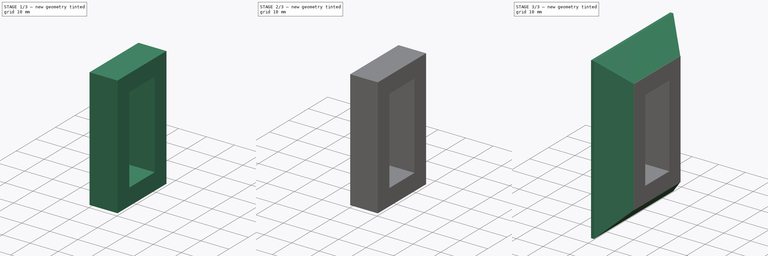
[diagram: build sequence overview — one tinted view per stage of 3, left to right]
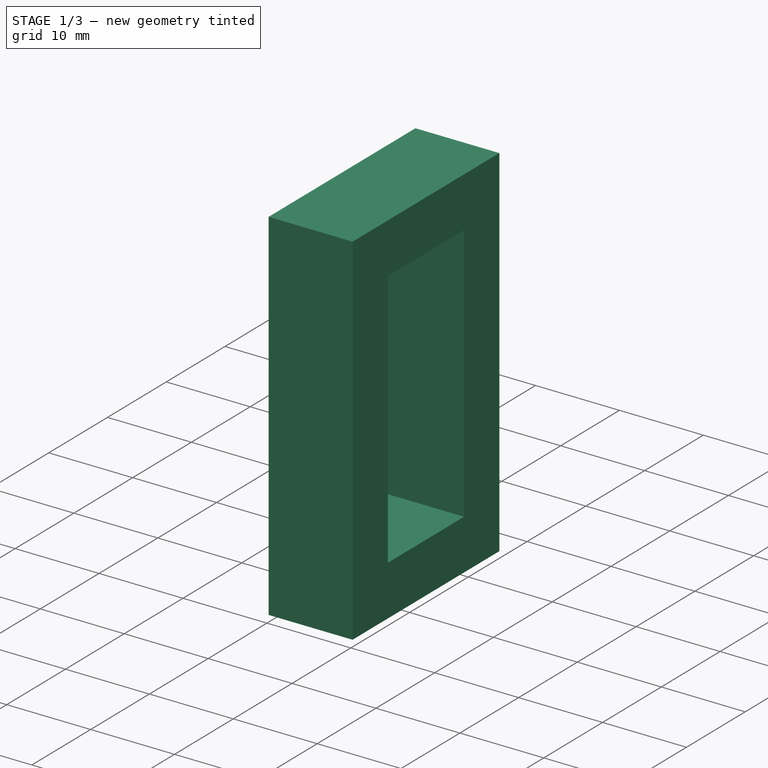
[diagram: stage 1 of 3 — iso view after this stage's code; geometry added in this stage tinted green]
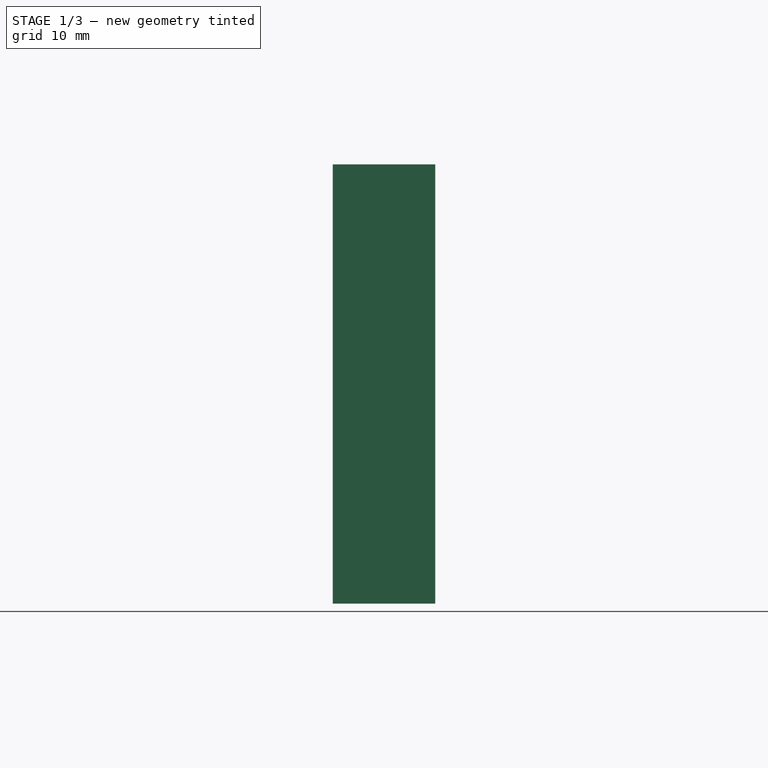
[diagram: stage 1 of 3 — front view after this stage's code; geometry added in this stage tinted green]
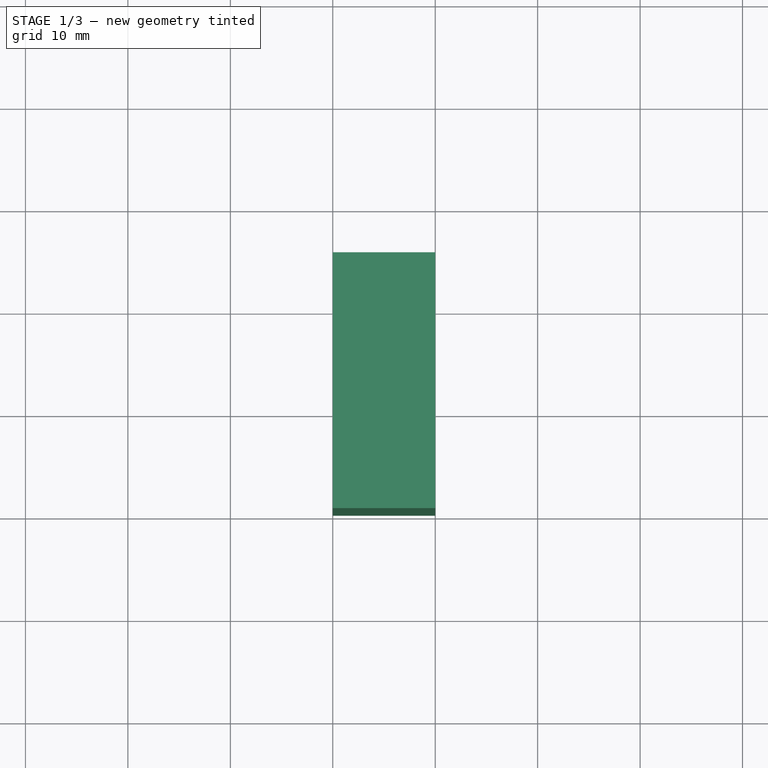
[diagram: stage 1 of 3 — top view after this stage's code; geometry added in this stage tinted green]
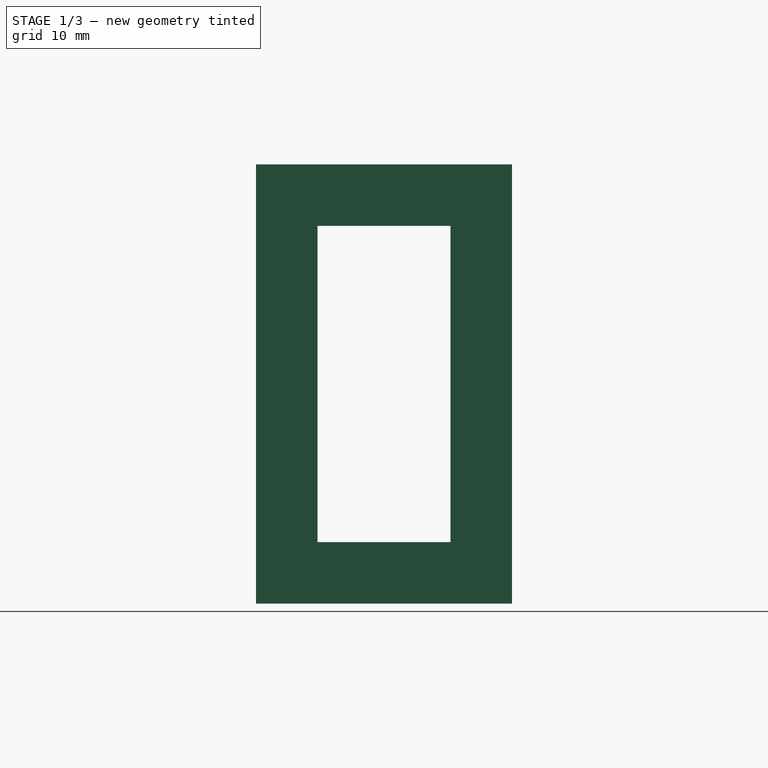
[diagram: stage 1 of 3 — right view after this stage's code; geometry added in this stage tinted green]
FCSTD DOCUMENT  (FreeCAD 0.20R29410 (Git))
Label: tools-case-top-panel-router-guide
License: All rights reserved
LicenseURL: http://en.wikipedia.org/wiki/All_rights_reserved
objects: Sketcher::SketchObject×3, PartDesign::Pad×3, PartDesign::Chamfer×2, Part::FeaturePython×1, PartDesign::ShapeBinder×1, PartDesign::Body×1
note: 16 computed .brp shape members not serialized (recipe doc carries the construction recipe); baked Part::Feature solids carry a one-line shape summary decoded from their .brp

FEATURE [Part::FeaturePython] b_case_top_panel_001_  label="REF_panel"  # a2plus imported part (geometry in sourceFile) (typed FeaturePython)
  a2p_Version = V0.1
  fixedPosition = true
  objectType = a2pPart
  sourceFile = .\case-top-panel.FCStd
  subassemblyImport = false
  timeLastImport = 1.68112e+09
  updateColors = true
FEATURE [PartDesign::ShapeBinder] ShapeBinder  label="sbPanel"
  Placement = pos=(-1e-15,1e-15,3) rot=(0.57735,0.57735,0.57735;4.18879rad)
  Support = -> [b_case_top_panel_001_]
  TraceSupport = false
FEATURE [Sketcher::SketchObject] Sketch  label="skBase"
  ExternalGeometry = -> [ShapeBinder]
  FullyConstrained = true
  MapMode = 5
  Placement = pos=(0,0,0) rot=(0.57735,0.57735,0.57735;2.0944rad)
  Support = -> [YZ_Plane]
  sketch-geometry (12):
    g0: LineSegment StartX=6.3047 StartY=10.44 StartZ=0 EndX=19.2847 EndY=10.44 EndZ=0
    g1: LineSegment StartX=19.2847 StartY=10.44 StartZ=0 EndX=19.2847 EndY=-20.44 EndZ=0
    g2: LineSegment StartX=19.2847 StartY=-20.44 StartZ=0 EndX=6.3047 EndY=-20.44 EndZ=0
    g3: LineSegment StartX=6.3047 StartY=-20.44 StartZ=0 EndX=6.3047 EndY=10.44 EndZ=0
    g4: Circle CenterX=7.9047 CenterY=8.84 CenterZ=0 NormalX=0 NormalY=0 NormalZ=1 AngleXU=0 Radius=1.6
    g5: Circle CenterX=17.6847 CenterY=-18.84 CenterZ=0 NormalX=0 NormalY=0 NormalZ=1 AngleXU=0 Radius=1.6
    g6: LineSegment StartX=0.3047 StartY=16.44 StartZ=0 EndX=25.2847 EndY=16.44 EndZ=0
    g7: LineSegment StartX=25.2847 StartY=16.44 StartZ=0 EndX=25.2847 EndY=-26.44 EndZ=0
    g8: LineSegment StartX=25.2847 StartY=-26.44 StartZ=0 EndX=0.3047 EndY=-26.44 EndZ=0
    g9: LineSegment StartX=0.3047 StartY=-26.44 StartZ=0 EndX=0.3047 EndY=16.44 EndZ=0
    g10: Circle CenterX=6.3047 CenterY=10.44 CenterZ=0 NormalX=0 NormalY=0 NormalZ=1 AngleXU=0 Radius=6
    g11: Circle CenterX=19.2847 CenterY=-20.44 CenterZ=0 NormalX=0 NormalY=0 NormalZ=1 AngleXU=0 Radius=6
  constraints (32):
    c: Coincident(g0,g1)
    c: Coincident(g1,g2)
    c: Coincident(g2,g3)
    c: Coincident(g3,g0)
    c: Horizontal(g0)
    c: Horizontal(g2)
    c: Vertical(g1)
    c: Vertical(g3)
    c: Coincident(g4,g-6)
    c: Coincident(g5,g-5)
    c: Tangent(g5,g1)
    c: Tangent(g5,g2)
    c: Tangent(g4,g0)
    c: Tangent(g4,g3)
    c: Equal(g4,g5)
    c: Diameter(g4) = 3.2
    c: Coincident(g6,g7)
    c: Coincident(g7,g8)
    c: Coincident(g8,g9)
    c: Coincident(g9,g6)
    c: Horizontal(g6)
    c: Horizontal(g8)
    c: Vertical(g7)
    c: Vertical(g9)
    c: Coincident(g10,g0)
    c: Tangent(g6,g10)
    c: Tangent(g9,g10)
    c: Radius(g10) = 6
    c: Coincident(g11,g1)
    c: Tangent(g11,g8)
    c: Tangent(g7,g11)
    c: Equal(g11,g10)
FEATURE [PartDesign::Pad] Pad  label="pdBase"
  Direction = (1,-2e-16,3e-16)
  Length = 10
  Length2 = 10
  Placement = pos=(0,0,0) rot=(0.57735,0.57735,0.57735;2.0944rad)
  Profile = -> Sketch
  ReferenceAxis = -> Sketch [N_Axis]
  Type = 0
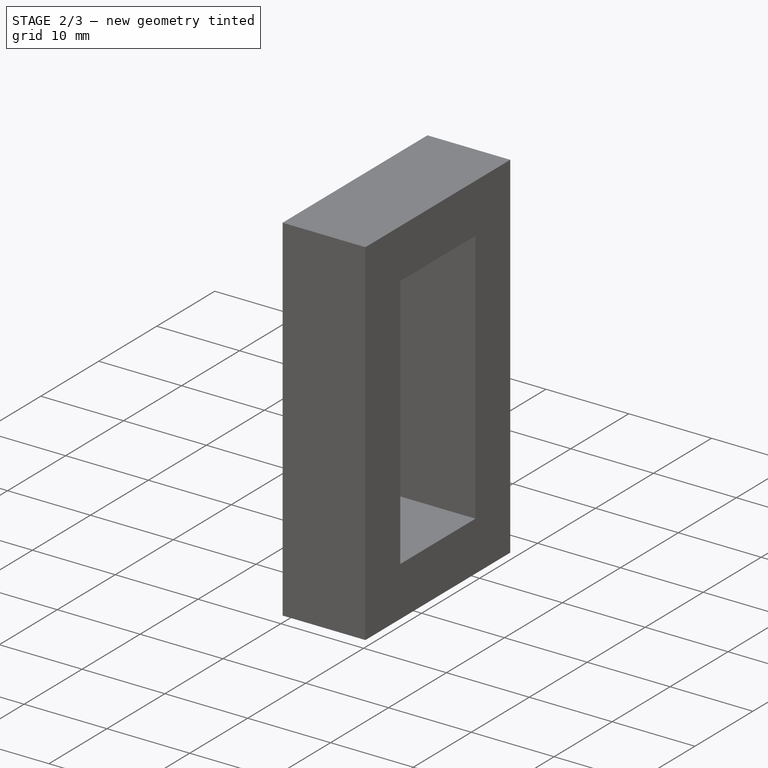
[diagram: stage 2 of 3 — iso view after this stage's code; geometry added in this stage tinted green]
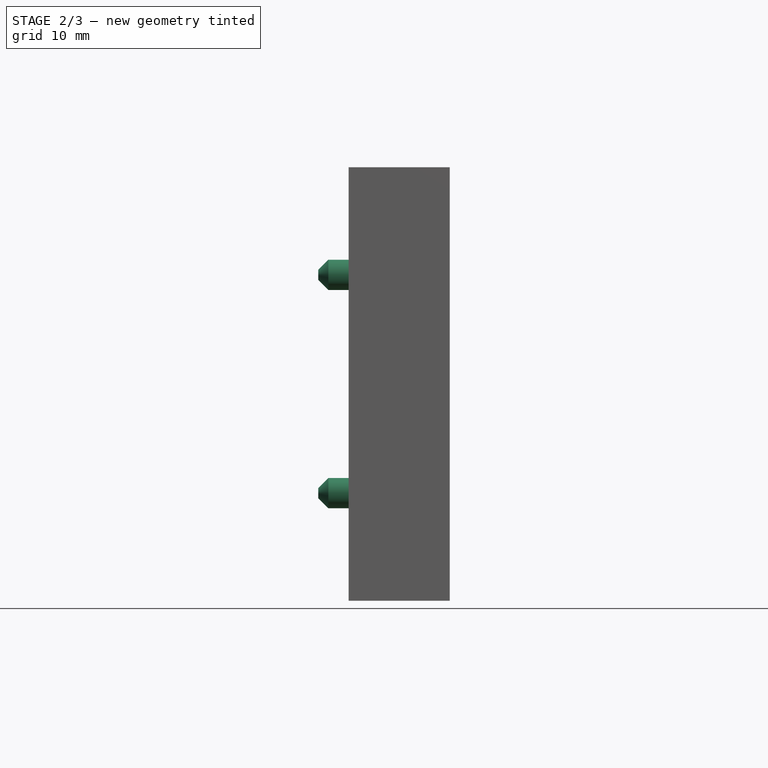
[diagram: stage 2 of 3 — front view after this stage's code; geometry added in this stage tinted green]
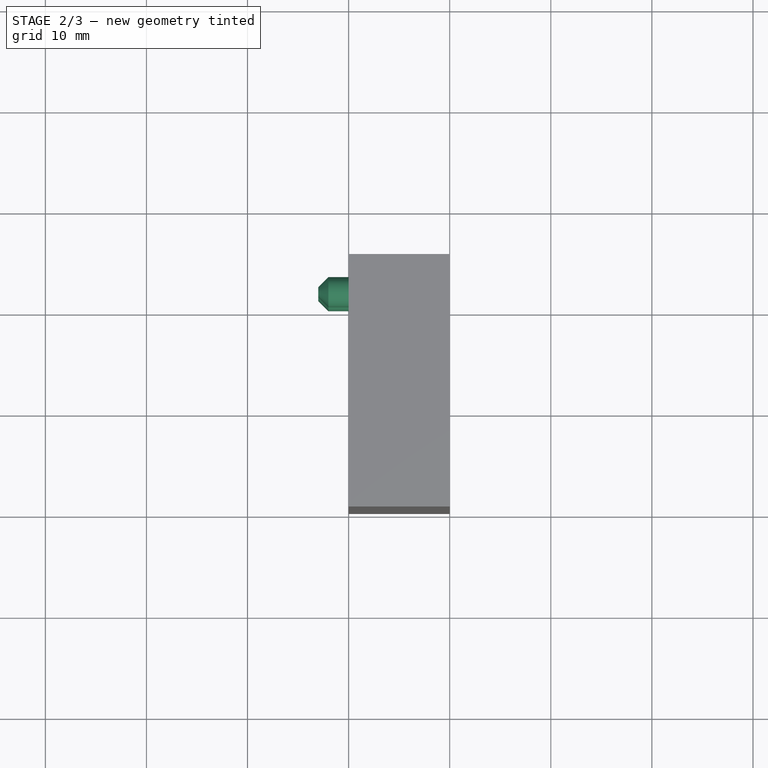
[diagram: stage 2 of 3 — top view after this stage's code; geometry added in this stage tinted green]
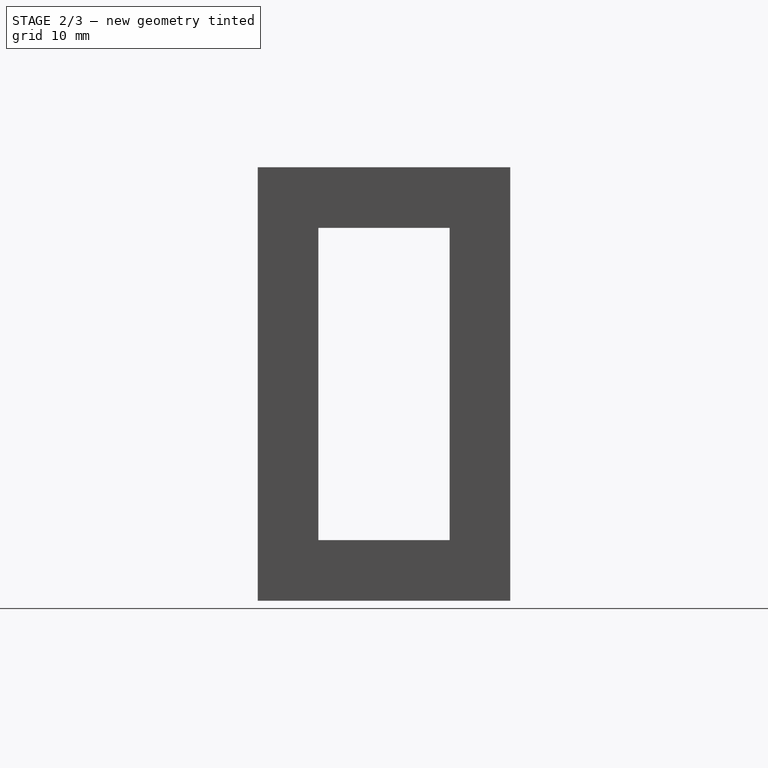
[diagram: stage 2 of 3 — right view after this stage's code; geometry added in this stage tinted green]
FEATURE [Sketcher::SketchObject] Sketch001  label="skErgots"
  ExternalGeometry = -> [ShapeBinder]
  FullyConstrained = true
  MapMode = 5
  Placement = pos=(0,0,0) rot=(0.57735,0.57735,0.57735;2.0944rad)
  Support = -> [YZ_Plane]
  sketch-geometry (2):
    g0: Circle CenterX=21.6847 CenterY=5.795 CenterZ=0 NormalX=0 NormalY=0 NormalZ=1 AngleXU=0 Radius=1.5
    g1: Circle CenterX=21.6847 CenterY=-15.795 CenterZ=0 NormalX=0 NormalY=0 NormalZ=1 AngleXU=0 Radius=1.5
  constraints (4):
    c: Equal(g1,g0)
    c: Diameter(g1) = 3
    c: Coincident(g0,g-3)
    c: Coincident(g1,g-4)
FEATURE [PartDesign::Pad] Pad001
  BaseFeature = -> Pad
  Direction = (1,-2e-16,3e-16)
  Length = 3
  Length2 = 10
  Placement = pos=(0,0,0) rot=(0.57735,0.57735,0.57735;2.0944rad)
  Profile = -> Sketch001
  ReferenceAxis = -> Sketch001 [N_Axis]
  Reversed = true
  Type = 0
FEATURE [PartDesign::Chamfer] Chamfer
  Angle = 45
  Base = -> Pad001 [Edge24,Edge26]
  BaseFeature = -> Pad001
  ChamferType = 0
  FlipDirection = false
  Placement = pos=(0,0,0) rot=(0.57735,0.57735,0.57735;2.0944rad)
  Size = 1
  Size2 = 1
  SupportTransform = false
  UseAllEdges = false
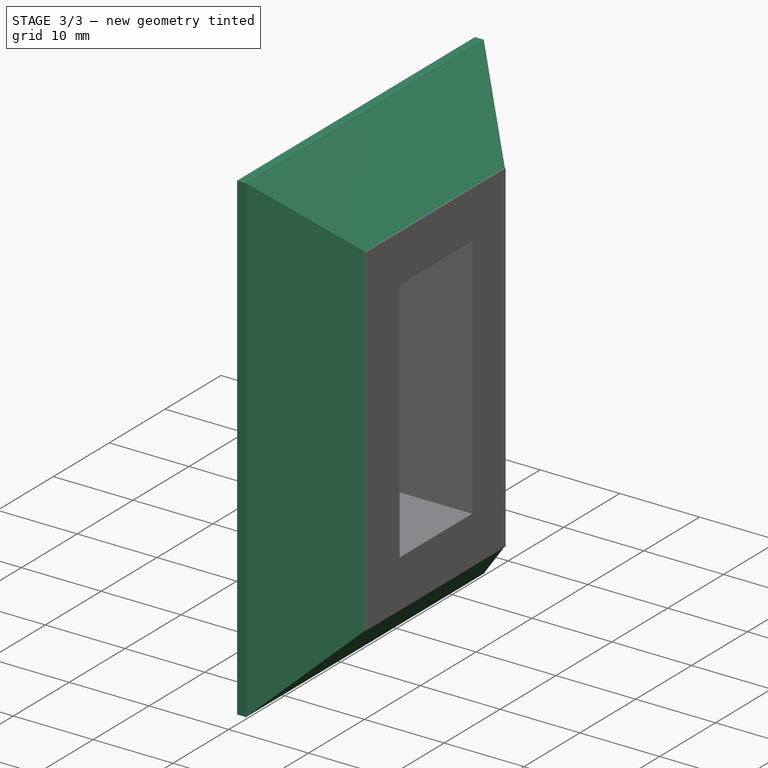
[diagram: stage 3 of 3 — iso view after this stage's code; geometry added in this stage tinted green]
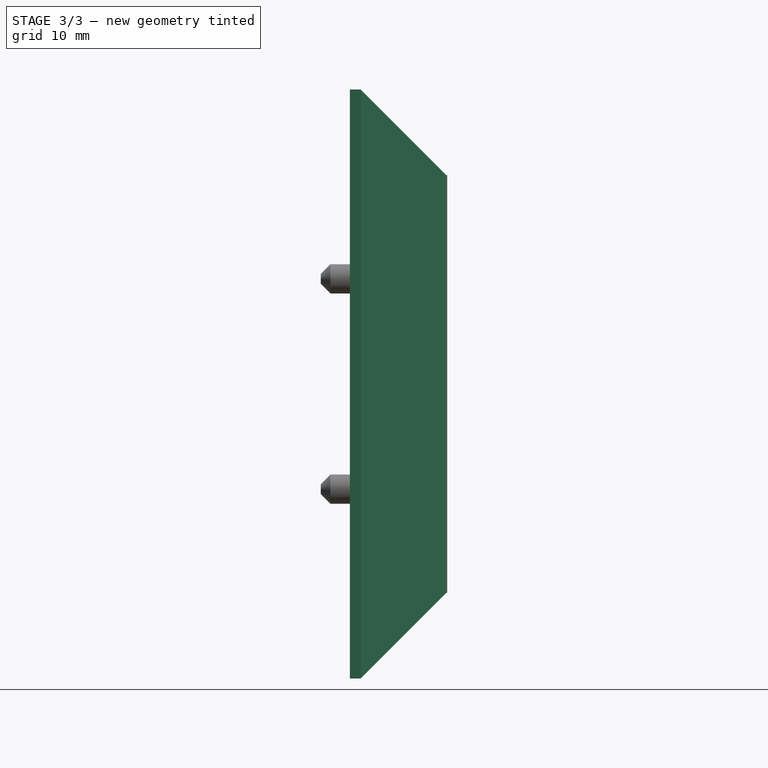
[diagram: stage 3 of 3 — front view after this stage's code; geometry added in this stage tinted green]
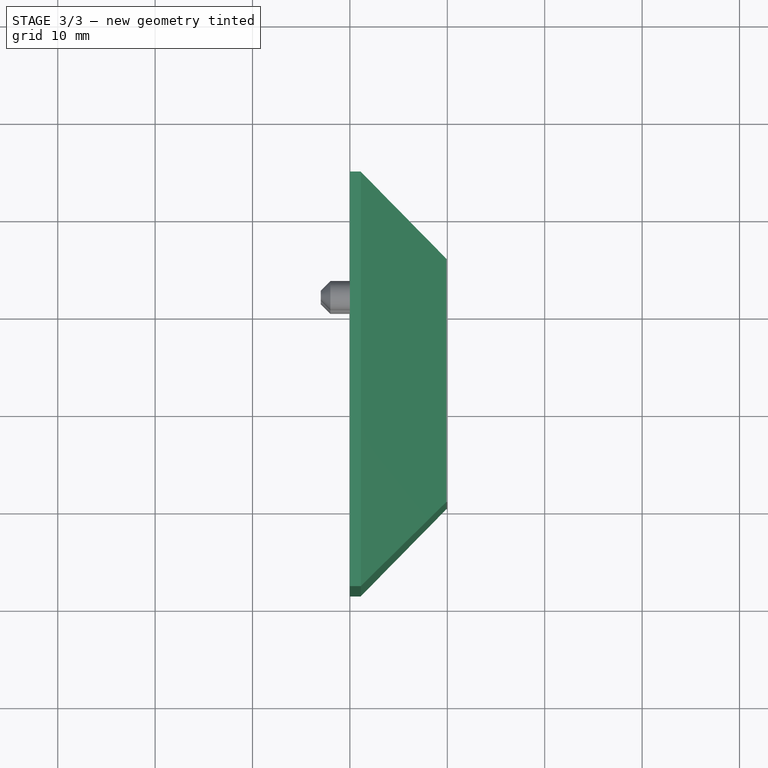
[diagram: stage 3 of 3 — top view after this stage's code; geometry added in this stage tinted green]
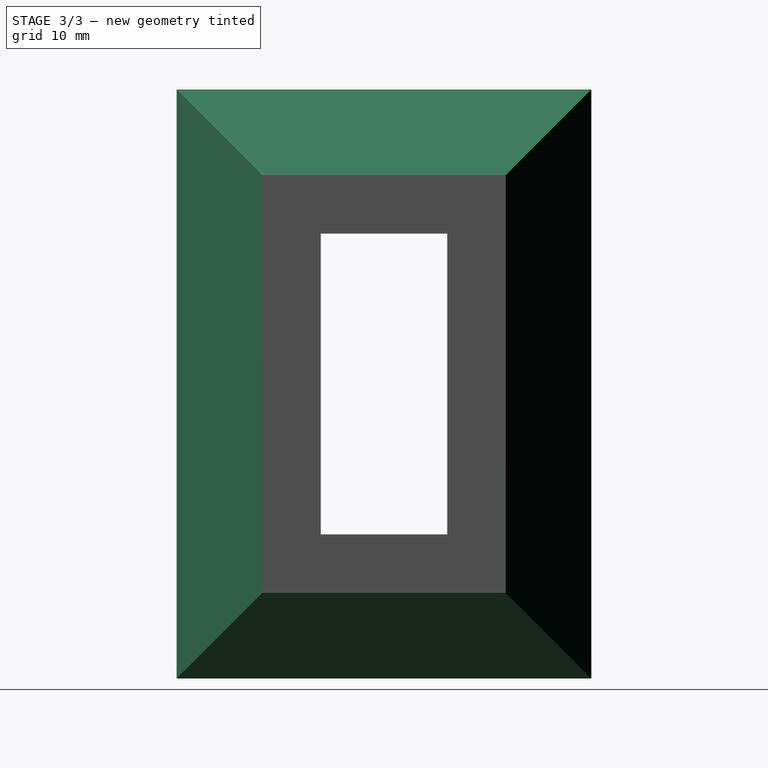
[diagram: stage 3 of 3 — right view after this stage's code; geometry added in this stage tinted green]
FEATURE [Sketcher::SketchObject] Sketch002
  ExternalGeometry = -> [Chamfer]
  FullyConstrained = false
  MapMode = 5
  Placement = pos=(0,0,0) rot=(0.57735,0.57735,0.57735;2.0944rad)
  Support = -> [YZ_Plane]
  sketch-geometry (10):
    g0: LineSegment StartX=1.84661 StartY=14.9675 StartZ=0 EndX=22.6342 EndY=14.9675 EndZ=0
    g1: LineSegment StartX=22.6342 StartY=14.9675 StartZ=0 EndX=22.6342 EndY=-22.5212 EndZ=0
    g2: LineSegment StartX=22.6342 StartY=-22.5212 StartZ=0 EndX=1.84661 EndY=-22.5212 EndZ=0
    g3: LineSegment StartX=1.84661 StartY=-22.5212 StartZ=0 EndX=1.84661 EndY=14.9675 EndZ=0
    g4: LineSegment StartX=-8.4953 StartY=25.24 StartZ=0 EndX=34.0847 EndY=25.24 EndZ=0
    g5: LineSegment StartX=34.0847 StartY=25.24 StartZ=0 EndX=34.0847 EndY=-35.24 EndZ=0
    g6: LineSegment StartX=34.0847 StartY=-35.24 StartZ=0 EndX=-8.4953 EndY=-35.24 EndZ=0
    g7: LineSegment StartX=-8.4953 StartY=-35.24 StartZ=0 EndX=-8.4953 EndY=25.24 EndZ=0
    g8: Circle CenterX=25.2847 CenterY=16.44 CenterZ=0 NormalX=0 NormalY=0 NormalZ=1 AngleXU=0 Radius=8.8
    g9: Circle CenterX=0.3047 CenterY=-26.44 CenterZ=0 NormalX=0 NormalY=0 NormalZ=1 AngleXU=0 Radius=8.8
  constraints (24):
    c: Coincident(g0,g1)
    c: Coincident(g1,g2)
    c: Coincident(g2,g3)
    c: Coincident(g3,g0)
    c: Horizontal(g0)
    c: Horizontal(g2)
    c: Vertical(g1)
    c: Vertical(g3)
    c: Coincident(g4,g5)
    c: Coincident(g5,g6)
    c: Coincident(g6,g7)
    c: Coincident(g7,g4)
    c: Horizontal(g4)
    c: Horizontal(g6)
    c: Vertical(g5)
    c: Vertical(g7)
    c: Coincident(g8,g-3)
    c: Coincident(g9,g-4)
    c: Tangent(g9,g6)
    c: Tangent(g9,g7)
    c: Tangent(g8,g5)
    c: Tangent(g4,g8)
    c: Radius(g8) = 8.8
    c: Equal(g8,g9)
FEATURE [PartDesign::Pad] Pad002
  BaseFeature = -> Chamfer
  Direction = (1,-2e-16,3e-16)
  Length = 1.12
  Length2 = 10
  Placement = pos=(0,0,0) rot=(0.57735,0.57735,0.57735;2.0944rad)
  Profile = -> Sketch002
  ReferenceAxis = -> Sketch002 [N_Axis]
  Refine = true
  Type = 0
FEATURE [PartDesign::Chamfer] Chamfer001
  Angle = 45
  Base = -> Pad002 [Edge15,Edge14,Edge13,Edge16]
  BaseFeature = -> Pad002
  ChamferType = 0
  FlipDirection = false
  Placement = pos=(0,0,0) rot=(0.57735,0.57735,0.57735;2.0944rad)
  Size = 8.78
  Size2 = 1
  SupportTransform = false
  UseAllEdges = false
FEATURE [PartDesign::Body] Body
  Group = -> [ShapeBinder,Sketch,Pad,Sketch001,Pad001,Chamfer,Sketch002,Pad002,Chamfer001]
  Origin = -> Origin
  Tip = -> Chamfer001
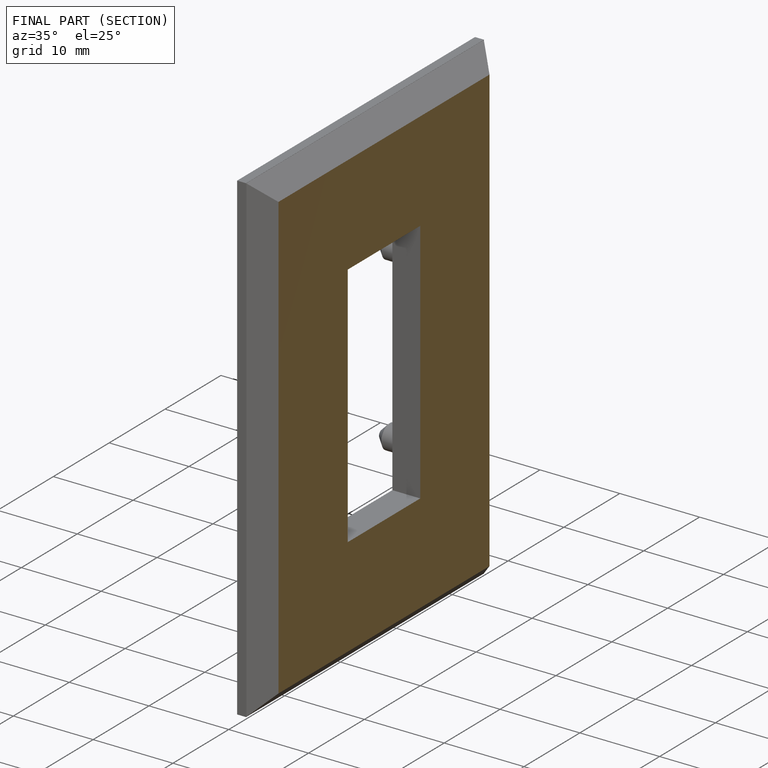
[diagram: finished part — half-section view (interior)]
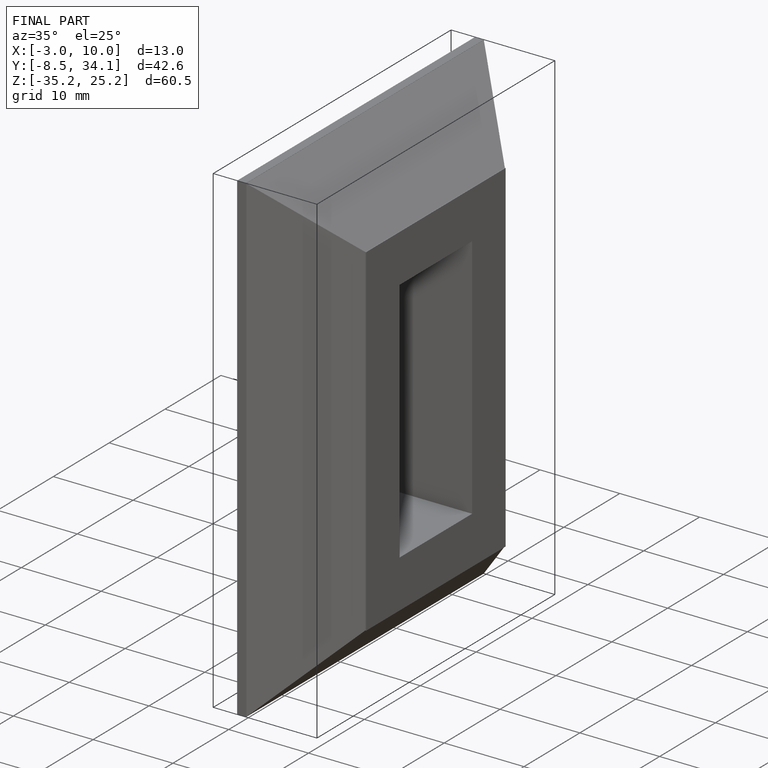
[diagram: finished part — iso view with bounding-box wireframe]
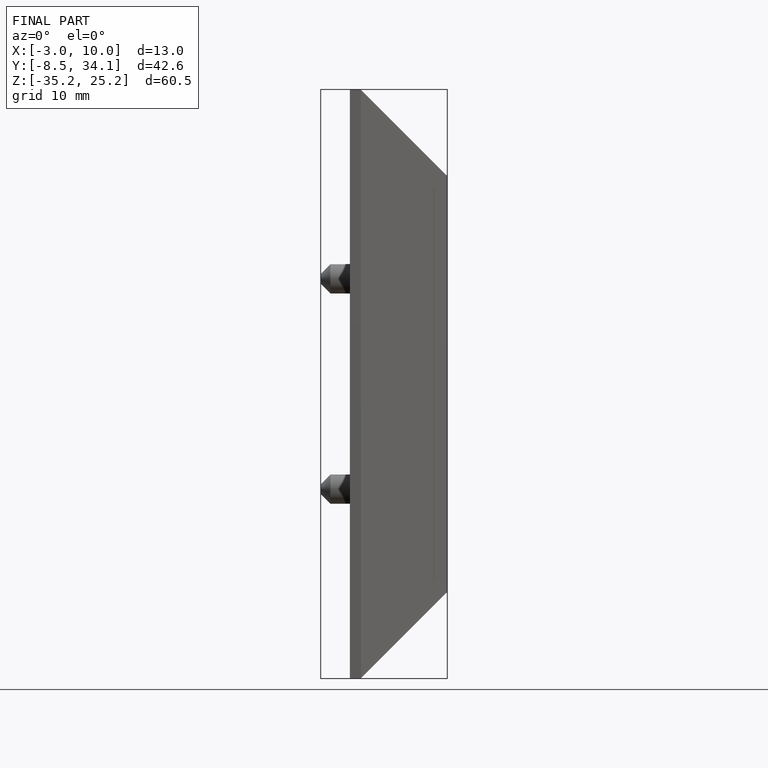
[diagram: finished part — front view with bounding-box wireframe]
